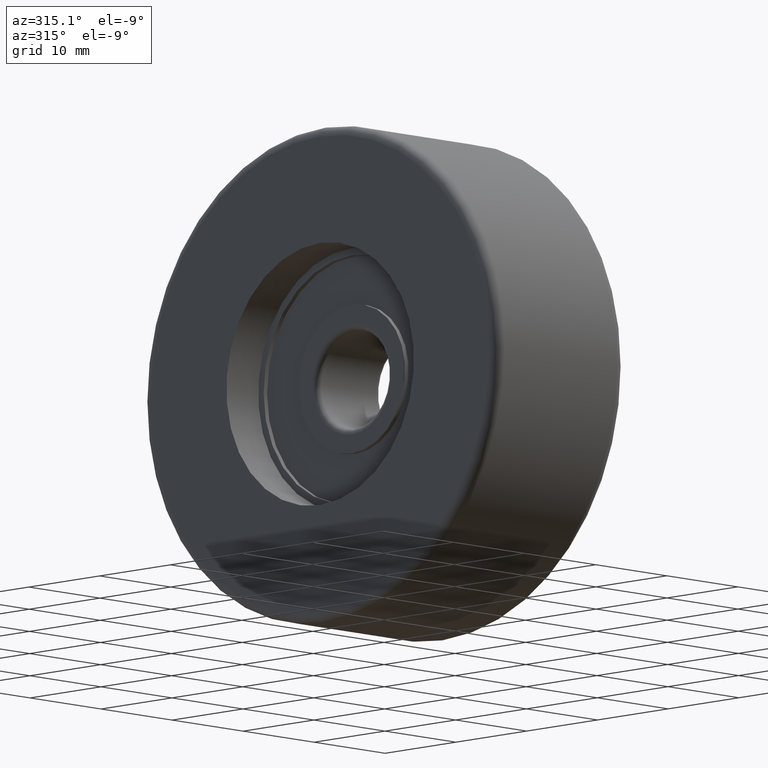
[diagram: clean part render]
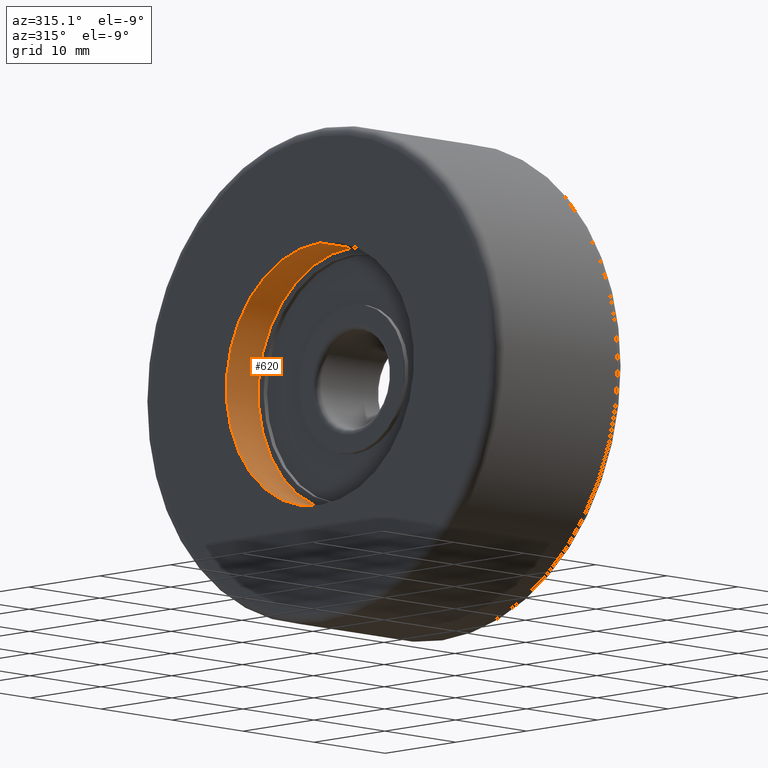
[diagram: same view with one face highlighted and labeled with its STEP entity id]
A machine part, auxiliary view. The second image highlights one B-rep face of the part: STEP entity #620.
In plain terms, the highlighted cylindrical surface (partial cylindrical patch) has radius 13.25 mm, axis along (-1, -0, -0).
Its self-contained STEP definition (entity closure, byte-faithful):
#14 = VERTEX_POINT ( 'NONE', #46 ) ;
#15 = ORIENTED_EDGE ( 'NONE', *, *, #1206, .T. ) ;
#46 = CARTESIAN_POINT ( 'NONE',  ( -4.500000000000000000, 0.0000000000000000000, 13.24999999999999822 ) ) ;
#73 = VECTOR ( 'NONE', #605, 1000.000000000000000 ) ;
#80 = CARTESIAN_POINT ( 'NONE',  ( -5.000000000000000000, 0.0000000000000000000, 0.0000000000000000000 ) ) ;
#100 = CARTESIAN_POINT ( 'NONE',  ( -9.000000000000000000, 0.0000000000000000000, 0.0000000000000000000 ) ) ;
#144 = DIRECTION ( 'NONE',  ( -1.000000000000000000, -0.0000000000000000000, -0.0000000000000000000 ) ) ;
#228 = DIRECTION ( 'NONE',  ( -1.000000000000000000, -0.0000000000000000000, -0.0000000000000000000 ) ) ;
#324 = CIRCLE ( 'NONE', #1152, 13.24999999999999822 ) ;
#342 = VERTEX_POINT ( 'NONE', #1341 ) ;
#404 = CYLINDRICAL_SURFACE ( 'NONE', #467, 13.24999999999999822 ) ;
#467 = AXIS2_PLACEMENT_3D ( 'NONE', #80, #765, #1292 ) ;
#567 = ORIENTED_EDGE ( 'NONE', *, *, #938, .T. ) ;
#601 = DIRECTION ( 'NONE',  ( -1.000000000000000000, -0.0000000000000000000, -0.0000000000000000000 ) ) ;
#605 = DIRECTION ( 'NONE',  ( -1.000000000000000000, -0.0000000000000000000, -0.0000000000000000000 ) ) ;
#620 = ADVANCED_FACE ( 'NONE', ( #887 ), #404, .F. ) ;
#674 = LINE ( 'NONE', #1128, #73 ) ;
#675 = CARTESIAN_POINT ( 'NONE',  ( -4.500000000000000000, 1.622657008870242685E-15, -13.24999999999999822 ) ) ;
#690 = DIRECTION ( 'NONE',  ( 0.0000000000000000000, 0.0000000000000000000, 1.000000000000000000 ) ) ;
#710 = CARTESIAN_POINT ( 'NONE',  ( -5.000000000000000000, 0.0000000000000000000, 13.24999999999999822 ) ) ;
#734 = VERTEX_POINT ( 'NONE', #675 ) ;
#765 = DIRECTION ( 'NONE',  ( -1.000000000000000000, -0.0000000000000000000, -0.0000000000000000000 ) ) ;
#822 = DIRECTION ( 'NONE',  ( 0.0000000000000000000, 0.0000000000000000000, 1.000000000000000000 ) ) ;
#887 = FACE_OUTER_BOUND ( 'NONE', #1185, .T. ) ;
#901 = VECTOR ( 'NONE', #144, 1000.000000000000000 ) ;
#938 = EDGE_CURVE ( 'NONE', #14, #1031, #1374, .T. ) ;
#939 = CARTESIAN_POINT ( 'NONE',  ( -9.000000000000000000, 0.0000000000000000000, 13.24999999999999822 ) ) ;
#992 = EDGE_CURVE ( 'NONE', #14, #734, #1070, .T. ) ;
#1029 = ORIENTED_EDGE ( 'NONE', *, *, #1425, .F. ) ;
#1031 = VERTEX_POINT ( 'NONE', #939 ) ;
#1070 = CIRCLE ( 'NONE', #1366, 13.24999999999999822 ) ;
#1128 = CARTESIAN_POINT ( 'NONE',  ( -5.000000000000000000, 1.622657008870242685E-15, -13.24999999999999822 ) ) ;
#1152 = AXIS2_PLACEMENT_3D ( 'NONE', #100, #228, #690 ) ;
#1185 = EDGE_LOOP ( 'NONE', ( #1029, #1236, #567, #15 ) ) ;
#1206 = EDGE_CURVE ( 'NONE', #1031, #342, #324, .T. ) ;
#1236 = ORIENTED_EDGE ( 'NONE', *, *, #992, .F. ) ;
#1257 = CARTESIAN_POINT ( 'NONE',  ( -4.500000000000000000, 0.0000000000000000000, 0.0000000000000000000 ) ) ;
#1292 = DIRECTION ( 'NONE',  ( 0.0000000000000000000, 0.0000000000000000000, 1.000000000000000000 ) ) ;
#1341 = CARTESIAN_POINT ( 'NONE',  ( -9.000000000000000000, 1.622657008870242685E-15, -13.24999999999999822 ) ) ;
#1366 = AXIS2_PLACEMENT_3D ( 'NONE', #1257, #601, #822 ) ;
#1374 = LINE ( 'NONE', #710, #901 ) ;
#1425 = EDGE_CURVE ( 'NONE', #734, #342, #674, .T. ) ;